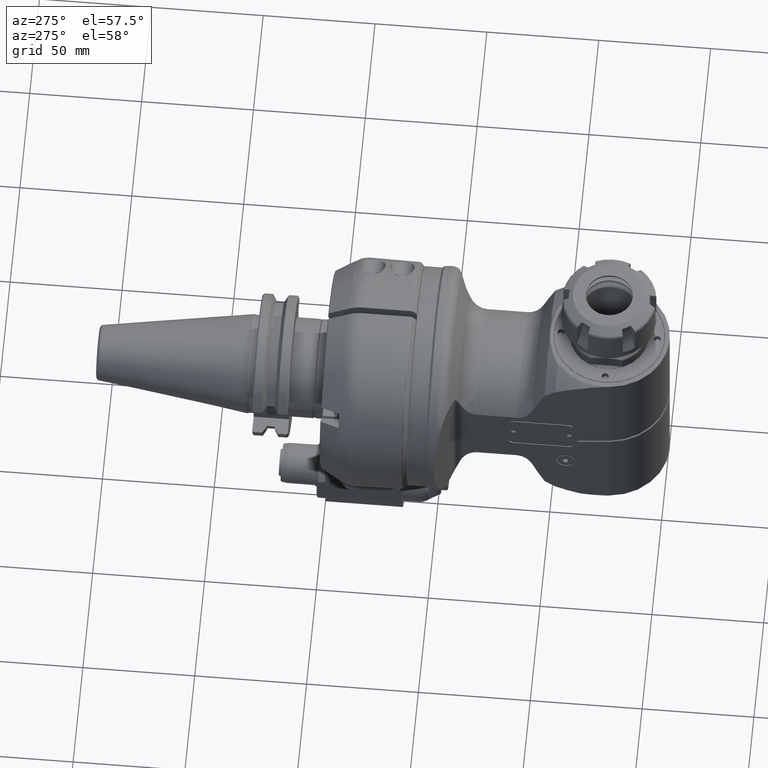
[diagram: clean part render]
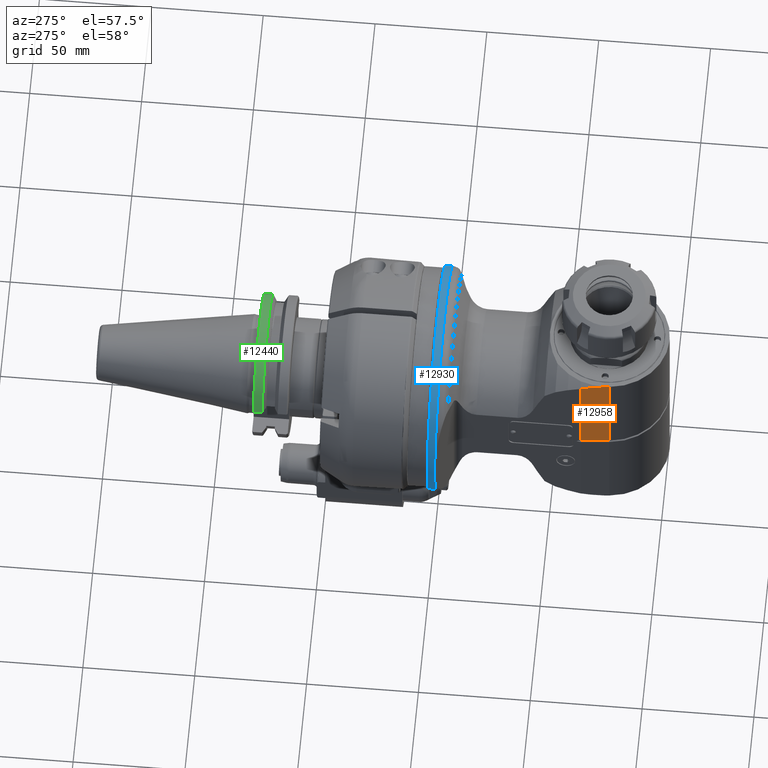
[diagram: same view with three faces highlighted in distinct colors, each labeled with its STEP entity id]
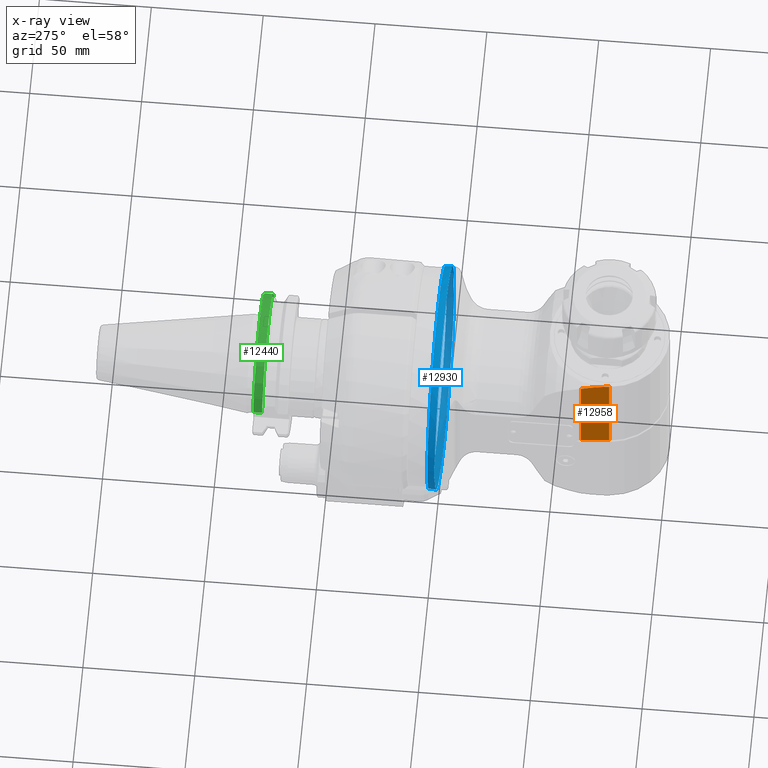
[diagram: x-ray of the same camera — body ghosted, the three highlighted faces saturated]
A machine part, auxiliary view with three faces highlighted in distinct colors.
The next image is the same camera in x-ray (body ghosted, the three faces saturated) — at least one of them is partly hidden behind the body in this view.
Their STEP definitions:

[orange] entity #12958 — the highlighted planar face has unit normal (0.9962, 0.0872, -0).
#133=ELLIPSE('',#14486,1229.91832837149,85.833950453452);
#466=(
BOUNDED_CURVE()
B_SPLINE_CURVE(2,(#53083,#53084,#53085),.UNSPECIFIED.,.F.,.F.)
B_SPLINE_CURVE_WITH_KNOTS((3,3),(0.143372410747049,0.628091981693551),
 .UNSPECIFIED.)
CURVE()
GEOMETRIC_REPRESENTATION_ITEM()
RATIONAL_B_SPLINE_CURVE((1.00002875311466,1.00007235540703,1.00008213178106))
REPRESENTATION_ITEM('')
);
#911=PLANE('',#14485);
#1844=FACE_OUTER_BOUND('',#2748,.T.);
#2748=EDGE_LOOP('',(#11510,#11511,#11512,#11513,#11514,#11515,#11516));
#3551=CIRCLE('',#14483,12.03093637885);
#4291=LINE('',#52748,#5086);
#4305=LINE('',#53016,#5100);
#4306=LINE('',#53021,#5101);
#4317=LINE('',#53079,#5112);
#5086=VECTOR('',#17807,42.6337666199103);
#5100=VECTOR('',#17961,1.97939553944791);
#5101=VECTOR('',#17966,44.33431457505);
#5112=VECTOR('',#18037,11.9999999999999);
#6251=VERTEX_POINT('',#52743);
#6252=VERTEX_POINT('',#52747);
#6288=VERTEX_POINT('',#52985);
#6295=VERTEX_POINT('',#53012);
#6297=VERTEX_POINT('',#53020);
#6308=VERTEX_POINT('',#53074);
#6309=VERTEX_POINT('',#53081);
#7988=EDGE_CURVE('',#6252,#6251,#4291,.T.);
#8059=EDGE_CURVE('',#6295,#6288,#4305,.T.);
#8061=EDGE_CURVE('',#6288,#6297,#4306,.T.);
#8087=EDGE_CURVE('',#6308,#6251,#3551,.T.);
#8089=EDGE_CURVE('',#6308,#6297,#4317,.T.);
#8090=EDGE_CURVE('',#6295,#6309,#133,.T.);
#8091=EDGE_CURVE('',#6252,#6309,#466,.T.);
#11510=ORIENTED_EDGE('',*,*,#7988,.T.);
#11511=ORIENTED_EDGE('',*,*,#8087,.F.);
#11512=ORIENTED_EDGE('',*,*,#8089,.T.);
#11513=ORIENTED_EDGE('',*,*,#8061,.F.);
#11514=ORIENTED_EDGE('',*,*,#8059,.F.);
#11515=ORIENTED_EDGE('',*,*,#8090,.T.);
#11516=ORIENTED_EDGE('',*,*,#8091,.F.);
#12958=ADVANCED_FACE('',(#1844),#911,.F.);
#14483=AXIS2_PLACEMENT_3D('',#53076,#18032,#18033);
#14485=AXIS2_PLACEMENT_3D('',#53080,#18038,#18039);
#14486=AXIS2_PLACEMENT_3D('',#53082,#18040,#18041);
#17807=DIRECTION('',(1.18262933663999E-7,0.999999999999993,8.78708382226194E-10));
#17961=DIRECTION('',(0.996194698091746,0.,0.087155742747654));
#17966=DIRECTION('',(2.660469554266E-14,1.,0.));
#18032=DIRECTION('center_axis',(0.0871551300912242,9.38254419224664E-6,
-0.996194751647864));
#18033=DIRECTION('ref_axis',(-0.0540635477448291,-0.998526249862787,-0.00473931853761569));
#18037=DIRECTION('',(0.99619469705141,2.38730007984102E-8,0.0871557546387409));
#18038=DIRECTION('center_axis',(-0.087155742747664,0.,0.996194698091745));
#18039=DIRECTION('ref_axis',(-0.996194698091745,0.,-0.0871557427476639));
#18040=DIRECTION('center_axis',(0.087155742747664,0.,-0.996194698091745));
#18041=DIRECTION('ref_axis',(-0.996194698091745,-2.72609445442401E-16,-0.0871557427476639));
#52743=CARTESIAN_POINT('',(79.7487916147076,-0.647955160228884,-27.9999999147063));
#52747=CARTESIAN_POINT('',(79.7487867023352,-43.2817206299328,-28.0000001818392));
#52748=CARTESIAN_POINT('',(79.74878658992,-43.28172148823,-28.00000000058));
#52985=CARTESIAN_POINT('',(92.35320505419,-45.,-26.89725684848));
#53012=CARTESIAN_POINT('',(90.38134171236,-45.,-27.06977253691));
#53016=CARTESIAN_POINT('',(90.38134171236,-45.,-27.06977253691));
#53020=CARTESIAN_POINT('',(92.35320505419,-0.6656854249492,-26.89725684848));
#53021=CARTESIAN_POINT('',(92.35320505419,-45.,-26.89725684848));
#53074=CARTESIAN_POINT('',(80.3988686916415,-0.665685687551106,-27.9431259279233));
#53076=CARTESIAN_POINT('Origin',(80.3992267093417,11.3652507328492,-27.9429813416115));
#53079=CARTESIAN_POINT('',(80.39886868956,-0.6656857114253,-27.94312590414));
#53080=CARTESIAN_POINT('Origin',(107.6642303492,-60.0000024,-25.55771570821));
#53081=CARTESIAN_POINT('',(84.38034694252,-44.30990272342,-27.59479154915));
#53082=CARTESIAN_POINT('Origin',(1133.73687722345,-1.11022302462516E-14,
64.2120088473313));
#53083=CARTESIAN_POINT('Ctrl Pts',(79.7487869003911,-43.281719888435,-28.00000054728));
#53084=CARTESIAN_POINT('Ctrl Pts',(82.0373834398191,-43.7943299609064,-27.7997742946954));
#53085=CARTESIAN_POINT('Ctrl Pts',(84.3803469425797,-44.3099027234301,-27.5947915491488));

[blue] entity #12930 — the highlighted cylindrical surface (bore or boss wall) has radius 50 mm, axis along (-0, 1, 0).
#127=ELLIPSE('',#14418,53.2088886237962,50.);
#130=ELLIPSE('',#14424,53.2088886237962,50.);
#1143=CYLINDRICAL_SURFACE('',#14427,50.);
#1816=FACE_OUTER_BOUND('',#2717,.T.);
#2717=EDGE_LOOP('',(#11381,#11382,#11383,#11384,#11385,#11386,#11387,#11388,
#11389));
#3523=CIRCLE('',#14426,50.);
#3524=CIRCLE('',#14428,50.);
#3525=CIRCLE('',#14429,50.);
#3526=CIRCLE('',#14430,50.);
#3527=CIRCLE('',#14431,50.);
#4298=LINE('',#52945,#5093);
#5093=VECTOR('',#17908,50.);
#6270=VERTEX_POINT('',#52852);
#6271=VERTEX_POINT('',#52871);
#6274=VERTEX_POINT('',#52898);
#6275=VERTEX_POINT('',#52917);
#6276=VERTEX_POINT('',#52940);
#6277=VERTEX_POINT('',#52941);
#6278=VERTEX_POINT('',#52944);
#8022=EDGE_CURVE('',#6270,#6271,#127,.T.);
#8028=EDGE_CURVE('',#6274,#6275,#130,.T.);
#8030=EDGE_CURVE('',#6275,#6270,#3523,.T.);
#8031=EDGE_CURVE('',#6276,#6277,#3524,.T.);
#8032=EDGE_CURVE('',#6277,#6276,#3525,.T.);
#8033=EDGE_CURVE('',#6277,#6278,#4298,.T.);
#8034=EDGE_CURVE('',#6271,#6278,#3526,.T.);
#8035=EDGE_CURVE('',#6278,#6274,#3527,.T.);
#11381=ORIENTED_EDGE('',*,*,#8031,.F.);
#11382=ORIENTED_EDGE('',*,*,#8032,.F.);
#11383=ORIENTED_EDGE('',*,*,#8033,.T.);
#11384=ORIENTED_EDGE('',*,*,#8034,.F.);
#11385=ORIENTED_EDGE('',*,*,#8022,.F.);
#11386=ORIENTED_EDGE('',*,*,#8030,.F.);
#11387=ORIENTED_EDGE('',*,*,#8028,.F.);
#11388=ORIENTED_EDGE('',*,*,#8035,.F.);
#11389=ORIENTED_EDGE('',*,*,#8033,.F.);
#12930=ADVANCED_FACE('',(#1816),#1143,.T.);
#14418=AXIS2_PLACEMENT_3D('',#52872,#17884,#17885);
#14424=AXIS2_PLACEMENT_3D('',#52918,#17896,#17897);
#14426=AXIS2_PLACEMENT_3D('',#52938,#17900,#17901);
#14427=AXIS2_PLACEMENT_3D('',#52939,#17902,#17903);
#14428=AXIS2_PLACEMENT_3D('',#52942,#17904,#17905);
#14429=AXIS2_PLACEMENT_3D('',#52943,#17906,#17907);
#14430=AXIS2_PLACEMENT_3D('',#52946,#17909,#17910);
#14431=AXIS2_PLACEMENT_3D('',#52947,#17911,#17912);
#17884=DIRECTION('center_axis',(0.939692620785897,0.,0.342020143325699));
#17885=DIRECTION('ref_axis',(0.342020143325699,0.,-0.939692620785897));
#17896=DIRECTION('center_axis',(0.939692620785897,0.,-0.342020143325699));
#17897=DIRECTION('ref_axis',(-0.342020143325699,0.,-0.939692620785897));
#17900=DIRECTION('center_axis',(1.,0.,0.));
#17901=DIRECTION('ref_axis',(0.,0.187279909699701,-0.982306589320703));
#17902=DIRECTION('center_axis',(-1.,0.,0.));
#17903=DIRECTION('ref_axis',(0.,1.,0.));
#17904=DIRECTION('center_axis',(-1.,0.,0.));
#17905=DIRECTION('ref_axis',(0.,1.,0.));
#17906=DIRECTION('center_axis',(-1.,0.,0.));
#17907=DIRECTION('ref_axis',(0.,1.,0.));
#17908=DIRECTION('',(1.,0.,0.));
#17909=DIRECTION('center_axis',(1.,0.,0.));
#17910=DIRECTION('ref_axis',(0.,-0.1872799096992,0.982306589320798));
#17911=DIRECTION('center_axis',(1.,0.,0.));
#17912=DIRECTION('ref_axis',(0.,-0.1872799096992,0.982306589320798));
#52852=CARTESIAN_POINT('',(16.31464863572,9.363995485014,49.11532946603));
#52871=CARTESIAN_POINT('',(16.31464863573,-9.363995485039,49.11532946603));
#52872=CARTESIAN_POINT('Origin',(34.1911666075347,0.,0.));
#52898=CARTESIAN_POINT('',(16.31464863572,-9.363995484987,-49.11532946603));
#52917=CARTESIAN_POINT('',(16.31464863573,9.36399548502,-49.11532946603));
#52918=CARTESIAN_POINT('Origin',(34.1911666075347,0.,0.));
#52938=CARTESIAN_POINT('Origin',(16.31464863572,0.,0.));
#52939=CARTESIAN_POINT('Origin',(54.606251,0.,0.));
#52940=CARTESIAN_POINT('',(13.,50.,0.));
#52941=CARTESIAN_POINT('',(13.,-50.,6.12323399573677E-15));
#52942=CARTESIAN_POINT('Origin',(13.,0.,0.));
#52943=CARTESIAN_POINT('Origin',(13.,0.,0.));
#52944=CARTESIAN_POINT('',(16.3146486357221,-50.,6.12323399573677E-15));
#52945=CARTESIAN_POINT('',(54.606251,-50.,6.12323399573677E-15));
#52946=CARTESIAN_POINT('Origin',(16.31464863572,0.,0.));
#52947=CARTESIAN_POINT('Origin',(16.31464863572,0.,0.));

[green] entity #12440 — the highlighted cylindrical surface (partial cylindrical patch) has radius 31.75 mm, axis along (0, -1, 0).
#1008=CYLINDRICAL_SURFACE('',#13446,31.75);
#1326=FACE_OUTER_BOUND('',#2136,.T.);
#2136=EDGE_LOOP('',(#9085,#9086,#9087,#9088));
#3039=CIRCLE('',#13445,31.75);
#3040=CIRCLE('',#13447,31.75);
#3797=LINE('',#19854,#4592);
#3803=LINE('',#19892,#4598);
#4592=VECTOR('',#15417,3.93332990993502);
#4598=VECTOR('',#15431,3.93332990956502);
#5476=VERTEX_POINT('',#19842);
#5477=VERTEX_POINT('',#19853);
#5484=VERTEX_POINT('',#19880);
#5485=VERTEX_POINT('',#19891);
#6835=EDGE_CURVE('',#5477,#5476,#3797,.T.);
#6845=EDGE_CURVE('',#5485,#5484,#3803,.T.);
#6852=EDGE_CURVE('',#5485,#5476,#3039,.T.);
#6853=EDGE_CURVE('',#5477,#5484,#3040,.T.);
#9085=ORIENTED_EDGE('',*,*,#6845,.T.);
#9086=ORIENTED_EDGE('',*,*,#6853,.F.);
#9087=ORIENTED_EDGE('',*,*,#6835,.T.);
#9088=ORIENTED_EDGE('',*,*,#6852,.F.);
#12440=ADVANCED_FACE('',(#1326),#1008,.T.);
#13445=AXIS2_PLACEMENT_3D('',#19932,#15445,#15446);
#13446=AXIS2_PLACEMENT_3D('',#19933,#15447,#15448);
#13447=AXIS2_PLACEMENT_3D('',#19934,#15449,#15450);
#15417=DIRECTION('',(2.52357405636099E-8,0.999999999999995,-9.45014715626196E-8));
#15431=DIRECTION('',(2.52385658790599E-8,-0.999999999999995,9.45120561083395E-8));
#15445=DIRECTION('center_axis',(0.,1.,0.));
#15446=DIRECTION('ref_axis',(-0.96614491666623,0.,0.258000000000008));
#15447=DIRECTION('center_axis',(0.,-1.,0.));
#15448=DIRECTION('ref_axis',(1.,0.,0.));
#15449=DIRECTION('center_axis',(0.,-1.,0.));
#15450=DIRECTION('ref_axis',(0.96614491666623,0.,0.258000000000008));
#19842=CARTESIAN_POINT('',(30.67510110415,70.325,8.1915));
#19853=CARTESIAN_POINT('',(30.6751009778148,66.3916667879604,8.19150055390068));
#19854=CARTESIAN_POINT('',(30.67510100489,66.39167009006,8.191500371705));
#19880=CARTESIAN_POINT('',(-30.6751009773954,66.3916667873843,8.19150055412788));
#19891=CARTESIAN_POINT('',(-30.67510110415,70.325,8.1915));
#19892=CARTESIAN_POINT('',(-30.67510110415,70.325,8.1915));
#19932=CARTESIAN_POINT('Origin',(0.,70.325,0.));
#19933=CARTESIAN_POINT('Origin',(0.,62.8875,0.));
#19934=CARTESIAN_POINT('Origin',(0.,66.39166676908,0.));